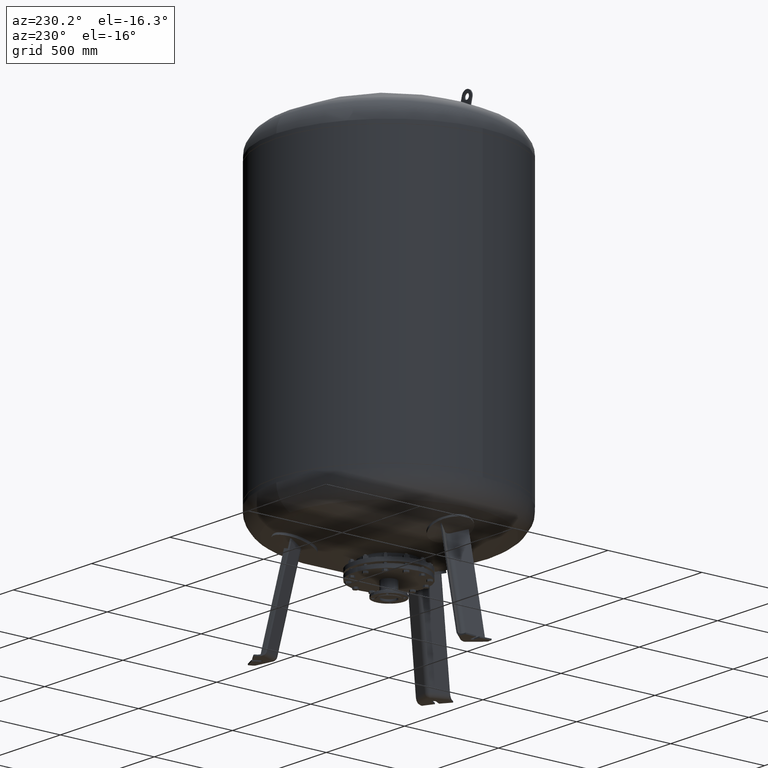
[diagram: clean part render]
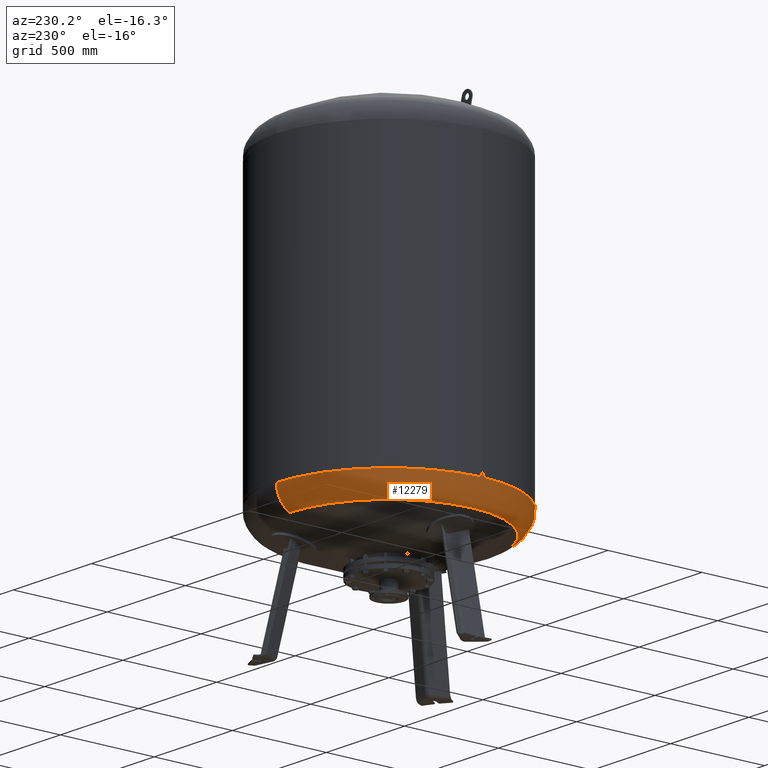
[diagram: same view with one face highlighted and labeled with its STEP entity id]
A machine part, auxiliary view. The second image highlights one B-rep face of the part: STEP entity #12279.
In plain terms, the highlighted toroidal blend (fillet) surface has major radius 473 mm and minor (blend) radius 127 mm.
Its self-contained STEP definition (entity closure, byte-faithful):
#12184=CARTESIAN_POINT('',(-600.0,-4.336858E-014,675.087542566272190));
#12185=VERTEX_POINT('',#12184);
#12209=CARTESIAN_POINT('',(-1.445307E-013,600.0,675.087542566272420));
#12210=VERTEX_POINT('',#12209);
#12218=CARTESIAN_POINT('',(-3.551733E-014,-4.336858E-014,675.087542566272300));
#12219=DIRECTION('',(0.0,0.0,1.0));
#12220=DIRECTION('',(-1.0,0.0,0.0));
#12221=AXIS2_PLACEMENT_3D('',#12218,#12219,#12220);
#12222=CIRCLE('',#12221,600.0);
#12223=EDGE_CURVE('',#12210,#12185,#12222,.T.);
#12228=CARTESIAN_POINT('',(-7.105427E-014,-4.336858E-014,675.087542566272300));
#12229=DIRECTION('',(-1.504413E-016,-1.836970E-016,1.0));
#12230=DIRECTION('',(0.0,-1.0,0.0));
#12231=AXIS2_PLACEMENT_3D('',#12228,#12229,#12230);
#12232=TOROIDAL_SURFACE('',#12231,472.999999999999890,127.000000000000010);
#12233=CARTESIAN_POINT('',(-7.105427E-014,-600.0,675.087542566272190));
#12234=VERTEX_POINT('',#12233);
#12235=CARTESIAN_POINT('',(-5.387807E-014,-528.621296296296240,560.915429516194880));
#12236=VERTEX_POINT('',#12235);
#12237=CARTESIAN_POINT('',(-7.105427E-014,-472.999999999999940,675.087542566272190));
#12238=DIRECTION('',(1.0,0.0,0.0));
#12239=DIRECTION('',(0.0,-1.0,0.0));
#12240=AXIS2_PLACEMENT_3D('',#12237,#12238,#12239);
#12241=CIRCLE('',#12240,127.000000000000010);
#12242=EDGE_CURVE('',#12234,#12236,#12241,.T.);
#12243=ORIENTED_EDGE('',*,*,#12242,.F.);
#12244=CARTESIAN_POINT('',(-3.551733E-014,-4.336858E-014,675.087542566272300));
#12245=DIRECTION('',(0.0,0.0,1.0));
#12246=DIRECTION('',(-1.0,0.0,0.0));
#12247=AXIS2_PLACEMENT_3D('',#12244,#12245,#12246);
#12248=CIRCLE('',#12247,600.0);
#12249=EDGE_CURVE('',#12185,#12234,#12248,.T.);
#12250=ORIENTED_EDGE('',*,*,#12249,.F.);
#12251=ORIENTED_EDGE('',*,*,#12223,.F.);
#12252=CARTESIAN_POINT('',(-1.186134E-013,528.621296296296240,560.915429516195100));
#12253=VERTEX_POINT('',#12252);
#12254=CARTESIAN_POINT('',(-1.289782E-013,472.999999999999830,675.087542566272420));
#12255=DIRECTION('',(-1.0,0.0,0.0));
#12256=DIRECTION('',(0.0,1.0,0.0));
#12257=AXIS2_PLACEMENT_3D('',#12254,#12255,#12256);
#12258=CIRCLE('',#12257,127.000000000000010);
#12259=EDGE_CURVE('',#12210,#12253,#12258,.T.);
#12260=ORIENTED_EDGE('',*,*,#12259,.T.);
#12261=CARTESIAN_POINT('',(-528.621296296296240,-2.239550E-014,560.915429516194990));
#12262=VERTEX_POINT('',#12261);
#12263=CARTESIAN_POINT('',(-1.834112E-014,-2.239550E-014,560.915429516194990));
#12264=DIRECTION('',(0.0,0.0,1.0));
#12265=DIRECTION('',(-1.0,0.0,0.0));
#12266=AXIS2_PLACEMENT_3D('',#12263,#12264,#12265);
#12267=CIRCLE('',#12266,528.621296296296240);
#12268=EDGE_CURVE('',#12253,#12262,#12267,.T.);
#12269=ORIENTED_EDGE('',*,*,#12268,.T.);
#12270=CARTESIAN_POINT('',(-1.834112E-014,-2.239550E-014,560.915429516194990));
#12271=DIRECTION('',(0.0,0.0,1.0));
#12272=DIRECTION('',(-1.0,0.0,0.0));
#12273=AXIS2_PLACEMENT_3D('',#12270,#12271,#12272);
#12274=CIRCLE('',#12273,528.621296296296240);
#12275=EDGE_CURVE('',#12262,#12236,#12274,.T.);
#12276=ORIENTED_EDGE('',*,*,#12275,.T.);
#12277=EDGE_LOOP('',(#12243,#12250,#12251,#12260,#12269,#12276));
#12278=FACE_OUTER_BOUND('',#12277,.T.);
#12279=ADVANCED_FACE('',(#12278),#12232,.T.);